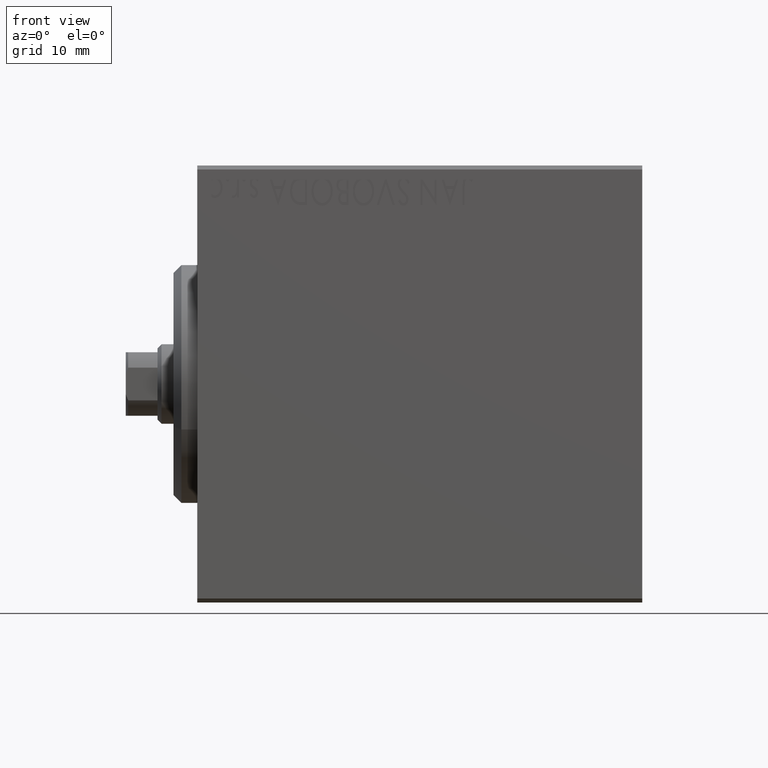
[diagram: clean part render]
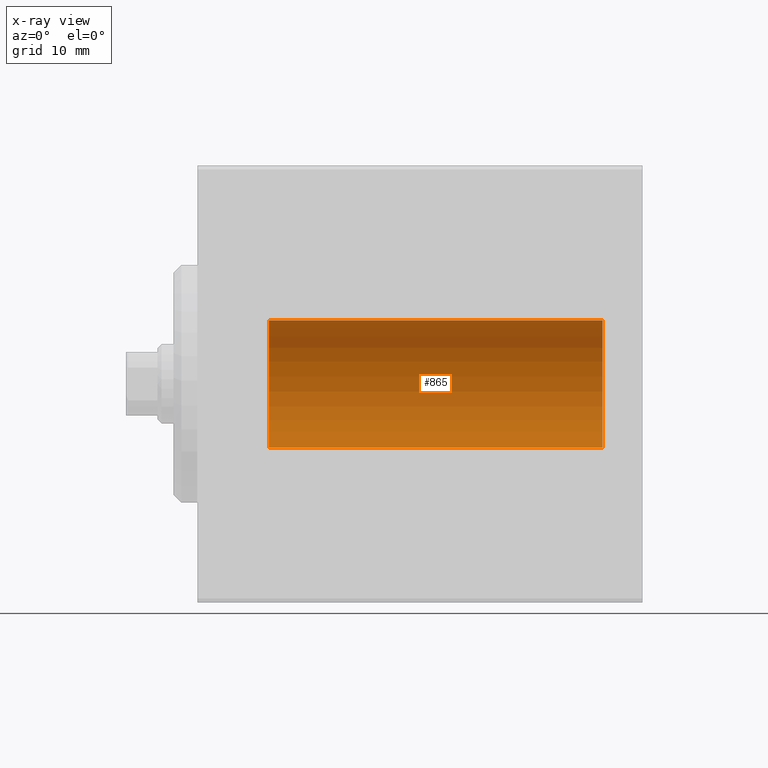
[diagram: x-ray — body ghosted, one internal face saturated and labeled with its STEP entity id]
A machine part, front view, then the same camera in x-ray: the body is ghosted and one INTERNAL B-rep face — a face not visible from any outside direction — is saturated and labeled: STEP entity #865.
In plain terms, the highlighted cylindrical surface (partial cylindrical patch) has radius 8 mm, axis along (-1, -0, -0).
Its self-contained STEP definition (entity closure, byte-faithful):
#585 = AXIS2_PLACEMENT_3D ( 'NONE', #14991, #21613, #31616 ) ;
#865 = ADVANCED_FACE ( 'NONE', ( #6172 ), #19691, .F. ) ;
#3537 = CARTESIAN_POINT ( 'NONE',  ( 51.00000000000000000, 9.797174393178823685E-16, -7.999999999999998224 ) ) ;
#3572 = AXIS2_PLACEMENT_3D ( 'NONE', #6188, #32590, #9512 ) ;
#5798 = DIRECTION ( 'NONE',  ( -1.000000000000000000, -0.000000000000000000, -0.000000000000000000 ) ) ;
#6172 = FACE_OUTER_BOUND ( 'NONE', #22405, .T. ) ;
#6188 = CARTESIAN_POINT ( 'NONE',  ( 9.000000000000001776, 0.000000000000000000, 0.000000000000000000 ) ) ;
#6873 = DIRECTION ( 'NONE',  ( -1.000000000000000000, -0.000000000000000000, -0.000000000000000000 ) ) ;
#9132 = LINE ( 'NONE', #42858, #31488 ) ;
#9283 = EDGE_CURVE ( 'NONE', #35295, #36833, #27706, .T. ) ;
#9512 = DIRECTION ( 'NONE',  ( 0.000000000000000000, 0.000000000000000000, 1.000000000000000000 ) ) ;
#12456 = AXIS2_PLACEMENT_3D ( 'NONE', #33239, #34982, #34324 ) ;
#12741 = CARTESIAN_POINT ( 'NONE',  ( 9.000000000000001776, 0.000000000000000000, 7.999999999999998224 ) ) ;
#14991 = CARTESIAN_POINT ( 'NONE',  ( 51.00000000000000000, 0.000000000000000000, 0.000000000000000000 ) ) ;
#15911 = EDGE_CURVE ( 'NONE', #40195, #36833, #21288, .T. ) ;
#19691 = CYLINDRICAL_SURFACE ( 'NONE', #12456, 7.999999999999998224 ) ;
#21036 = ORIENTED_EDGE ( 'NONE', *, *, #27501, .T. ) ;
#21288 = CIRCLE ( 'NONE', #3572, 7.999999999999998224 ) ;
#21613 = DIRECTION ( 'NONE',  ( -1.000000000000000000, 0.000000000000000000, 0.000000000000000000 ) ) ;
#21754 = CARTESIAN_POINT ( 'NONE',  ( 9.000000000000001776, 9.797174393178823685E-16, -7.999999999999998224 ) ) ;
#22405 = EDGE_LOOP ( 'NONE', ( #32117, #23372, #21036, #23148 ) ) ;
#22801 = CARTESIAN_POINT ( 'NONE',  ( 51.00000000000000000, 9.797174393178823685E-16, -7.999999999999998224 ) ) ;
#23148 = ORIENTED_EDGE ( 'NONE', *, *, #15911, .T. ) ;
#23372 = ORIENTED_EDGE ( 'NONE', *, *, #42446, .F. ) ;
#23876 = CARTESIAN_POINT ( 'NONE',  ( 51.00000000000000000, 0.000000000000000000, 7.999999999999998224 ) ) ;
#27501 = EDGE_CURVE ( 'NONE', #33382, #40195, #9132, .T. ) ;
#27706 = LINE ( 'NONE', #3537, #40383 ) ;
#31488 = VECTOR ( 'NONE', #5798, 1000.000000000000000 ) ;
#31616 = DIRECTION ( 'NONE',  ( 0.000000000000000000, 0.000000000000000000, 1.000000000000000000 ) ) ;
#32117 = ORIENTED_EDGE ( 'NONE', *, *, #9283, .F. ) ;
#32590 = DIRECTION ( 'NONE',  ( -1.000000000000000000, 0.000000000000000000, 0.000000000000000000 ) ) ;
#33171 = CIRCLE ( 'NONE', #585, 7.999999999999998224 ) ;
#33239 = CARTESIAN_POINT ( 'NONE',  ( 51.00000000000000000, 0.000000000000000000, 0.000000000000000000 ) ) ;
#33382 = VERTEX_POINT ( 'NONE', #23876 ) ;
#34324 = DIRECTION ( 'NONE',  ( 0.000000000000000000, 0.000000000000000000, 1.000000000000000000 ) ) ;
#34982 = DIRECTION ( 'NONE',  ( -1.000000000000000000, -0.000000000000000000, -0.000000000000000000 ) ) ;
#35295 = VERTEX_POINT ( 'NONE', #22801 ) ;
#36833 = VERTEX_POINT ( 'NONE', #21754 ) ;
#40195 = VERTEX_POINT ( 'NONE', #12741 ) ;
#40383 = VECTOR ( 'NONE', #6873, 1000.000000000000000 ) ;
#42446 = EDGE_CURVE ( 'NONE', #33382, #35295, #33171, .T. ) ;
#42858 = CARTESIAN_POINT ( 'NONE',  ( 51.00000000000000000, 0.000000000000000000, 7.999999999999998224 ) ) ;